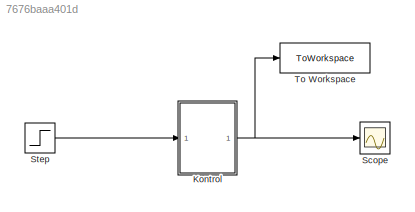
MODEL slx_7676baaa401d
KIND model
CONFIG AbsTol = auto
CONFIG EnableMultiTasking = off
CONFIG FixedStep = auto
CONFIG MaxStep = auto
CONFIG MinStep = auto
CONFIG RelTol = 1e-3
CONFIG SampleTimeConstraint = Unconstrained
CONFIG SolverName = VariableStepAuto
CONFIG StartTime = 0.0
CONFIG StopTime = 50
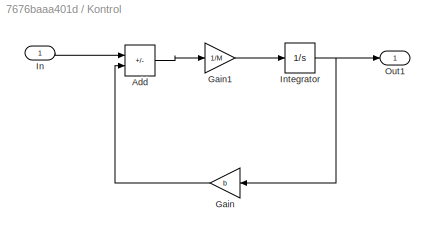
BLOCK [SubSystem] Kontrol
  Ports = [1, 1]
  RequestExecContextInheritance = off
BLOCK [Sum] Kontrol/Add
  IconShape = rectangular
  Inputs = +-
  Ports = [2, 1]
BLOCK [Gain] Kontrol/Gain
  Gain = b
  NameLocation = top
BLOCK [Gain] Kontrol/Gain1
  Gain = 1/M
BLOCK [Inport] Kontrol/In
BLOCK [Integrator] Kontrol/Integrator
  Ports = [1, 1]
BLOCK [Outport] Kontrol/Out1
BLOCK [Scope] Scope
  Floating = off
  NumInputPorts = 1
  Ports = [1]
  ScopeSpecificationString = Simulink.scopes.TimeScopeBlockCfg('CurrentConfiguration', extmgr.ConfigurationSet(extmgr.Configuration('Core','General UI',true,'FigureColor',[1 1 1]),extmgr.Configuration('Core','Source UI',true),extmgr.Configuration('Sources','WiredSimulink',true,'DataLoggingVariableName','DataElin','DataLogging',true,'DataLoggingSaveFormat','Array'),extmgr.Configuration('Visuals','Time Domain',true,'SerializedD...<+1650ch>
BLOCK [Step] Step
  SampleTime = 0
BLOCK [ToWorkspace] To Workspace
  FixptAsFi = on
  MaxDataPoints = inf
  Ports = [1]
  SampleTime = -1
  VariableName = GALIH
LINE Kontrol/Add:1 -> Kontrol/Gain1:1
LINE Kontrol/Gain1:1 -> Kontrol/Integrator:1
LINE Kontrol/Gain:1 -> Kontrol/Add:2
LINE Kontrol/In:1 -> Kontrol/Add:1
NET Kontrol/Integrator:1 -> Kontrol/Gain:1, Kontrol/Out1:1
NET Kontrol:1 -> Scope:1, To Workspace:1
LINE Step:1 -> Kontrol:1
note: NET lines group one-source signal fan-out (src -> all destinations, sorted); 1:1 wires keep LINE
